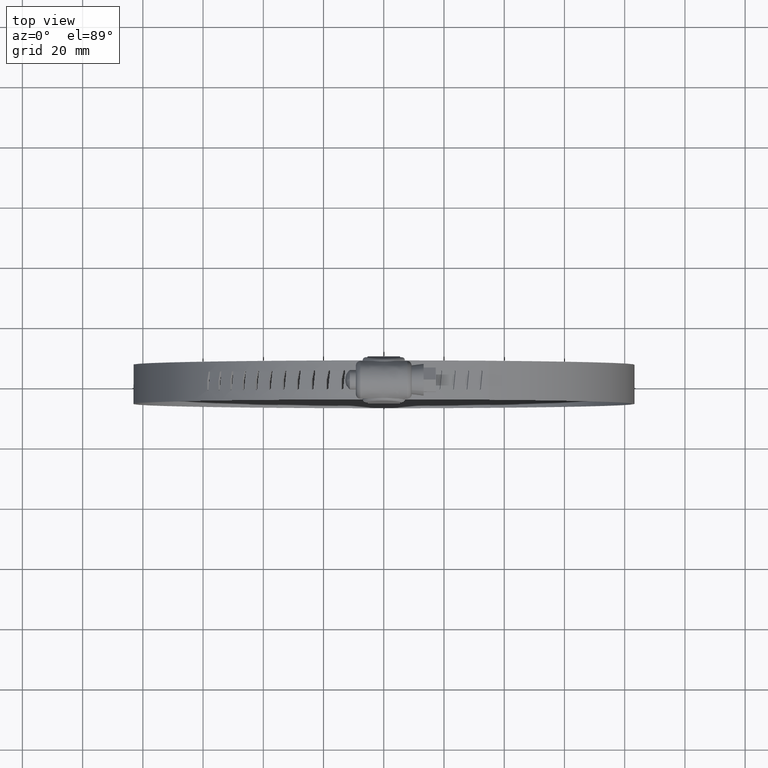
[diagram: clean part render]
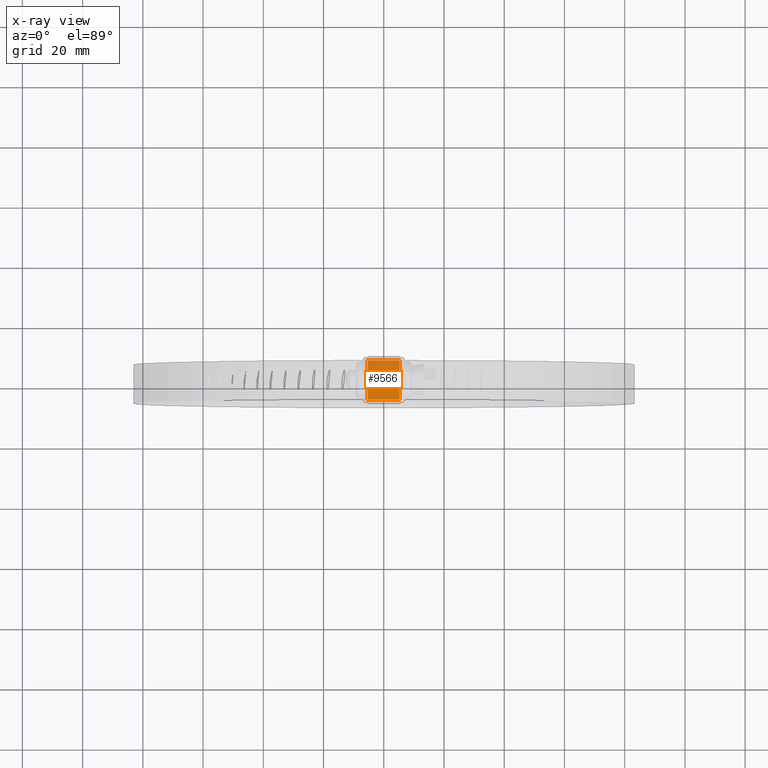
[diagram: x-ray — body ghosted, one internal face saturated and labeled with its STEP entity id]
A machine part, top view, then the same camera in x-ray: the body is ghosted and one INTERNAL B-rep face — a face not visible from any outside direction — is saturated and labeled: STEP entity #9566.
In plain terms, the highlighted face is a freeform B-spline surface patch.
Its self-contained STEP definition (entity closure, byte-faithful):
#7475=CARTESIAN_POINT('',(-5.346089577441540,-6.499999999999840,11.406106570999141));
#7476=VERTEX_POINT('',#7475);
#7573=CARTESIAN_POINT('',(-5.346089577441560,6.500000000000000,11.406106570999141));
#7574=VERTEX_POINT('',#7573);
#7608=CARTESIAN_POINT('',(-5.346089577441560,6.500000000000000,11.406106570999141));
#7609=CARTESIAN_POINT('',(-5.346089577441540,-6.499999999999840,11.406106570999141));
#7610=QUASI_UNIFORM_CURVE('',1,(#7608,#7609),.UNSPECIFIED.,.F.,.U.);
#7611=EDGE_CURVE('',#7574,#7476,#7610,.T.);
#9526=CARTESIAN_POINT('',(5.862403274722106,-6.824999999999837,12.211781782229194));
#9527=CARTESIAN_POINT('',(5.862403274722106,6.833124999999997,12.211781782229194));
#9528=CARTESIAN_POINT('',(-0.037216402995997,-6.824999999999837,12.178881274291959));
#9529=CARTESIAN_POINT('',(-0.037216402995997,6.833124999999997,12.178881274291959));
#9530=CARTESIAN_POINT('',(-5.875667149217398,-6.824999999999837,11.330890903422132));
#9531=CARTESIAN_POINT('',(-5.875667149217398,6.833124999999997,11.330890903422132));
#9539=(BOUNDED_SURFACE()B_SPLINE_SURFACE(1,2,((#9526,#9528,#9530),(#9527,#9529,#9531)),.UNSPECIFIED.,.F.,.F.,.U.)B_SPLINE_SURFACE_WITH_KNOTS((2,2),(3,3),(0.0,13.658124999999830),(0.0,11.785232280126699),.UNSPECIFIED.)GEOMETRIC_REPRESENTATION_ITEM()RATIONAL_B_SPLINE_SURFACE(((0.999057167043739,0.996121570242244,0.997983677315211),(0.999057167043739,0.996121570242244,0.997983677315211)))REPRESENTATION_ITEM('')SURFACE());
#9540=CARTESIAN_POINT('',(5.328079783931280,-6.499999999999840,12.207121674662400));
#9541=VERTEX_POINT('',#9540);
#9542=CARTESIAN_POINT('',(5.328079783931280,-6.499999999999840,12.207121674662400));
#9543=CARTESIAN_POINT('',(1.757900043717547,-6.499999999999857,12.164850378588859));
#9544=CARTESIAN_POINT('',(-1.809582418702406,-6.499999999999832,11.897095772616661));
#9545=CARTESIAN_POINT('',(-5.346089577441540,-6.499999999999840,11.406106570999141));
#9546=B_SPLINE_CURVE_WITH_KNOTS('',3,(#9542,#9543,#9544,#9545),.UNSPECIFIED.,.F.,.U.,(4,4),(5.105854E-010,10.711281351490650),.UNSPECIFIED.);
#9547=EDGE_CURVE('',#9541,#7476,#9546,.T.);
#9548=ORIENTED_EDGE('',*,*,#9547,.T.);
#9549=ORIENTED_EDGE('',*,*,#7611,.F.);
#9550=CARTESIAN_POINT('',(5.328079783931280,6.500000000000000,12.207121674662400));
#9551=VERTEX_POINT('',#9550);
#9552=CARTESIAN_POINT('',(5.328079783931280,6.500000000000000,12.207121674662400));
#9553=CARTESIAN_POINT('',(1.757903288920456,6.499999999999995,12.164808686855091));
#9554=CARTESIAN_POINT('',(-1.809585786005511,6.500000000000026,11.897137475899200));
#9555=CARTESIAN_POINT('',(-5.346089577441560,6.500000000000000,11.406106570999141));
#9556=B_SPLINE_CURVE_WITH_KNOTS('',3,(#9552,#9553,#9554,#9555),.UNSPECIFIED.,.F.,.U.,(4,4),(5.105800E-010,10.711281351490680),.UNSPECIFIED.);
#9557=EDGE_CURVE('',#9551,#7574,#9556,.T.);
#9558=ORIENTED_EDGE('',*,*,#9557,.F.);
#9559=CARTESIAN_POINT('',(5.328079783931280,6.500000000000000,12.207121674662400));
#9560=CARTESIAN_POINT('',(5.328079783931280,-6.499999999999840,12.207121674662400));
#9561=QUASI_UNIFORM_CURVE('',1,(#9559,#9560),.UNSPECIFIED.,.F.,.U.);
#9562=EDGE_CURVE('',#9551,#9541,#9561,.T.);
#9563=ORIENTED_EDGE('',*,*,#9562,.T.);
#9564=EDGE_LOOP('',(#9548,#9549,#9558,#9563));
#9565=FACE_OUTER_BOUND('',#9564,.T.);
#9566=ADVANCED_FACE('',(#9565),#9539,.F.);